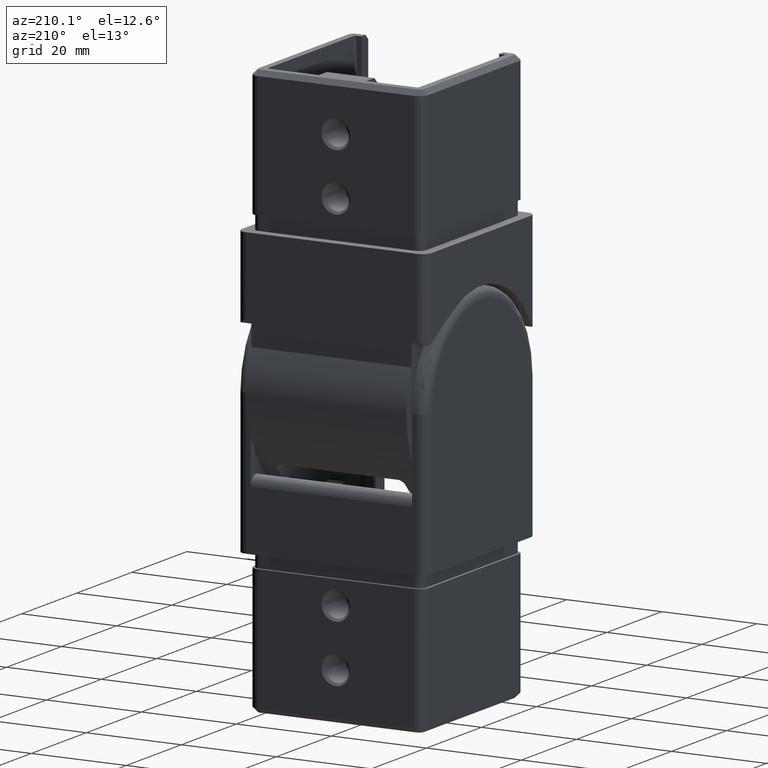
[diagram: clean part render]
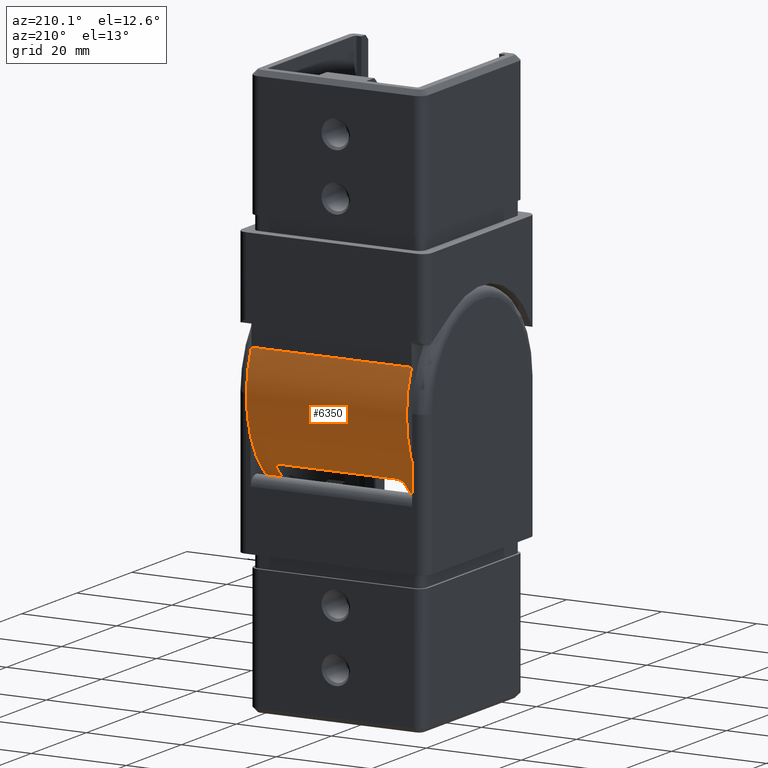
[diagram: same view with one face highlighted and labeled with its STEP entity id]
A machine part, auxiliary view. The second image highlights one B-rep face of the part: STEP entity #6350.
In plain terms, the highlighted cylindrical surface (partial cylindrical patch) has radius 21.8 mm, axis along (-1, -0, -0).
Its self-contained STEP definition (entity closure, byte-faithful):
#175 = CARTESIAN_POINT ( 'NONE',  ( 16.84999999999999100, 20.00000000000000000, -21.32590062311942700 ) ) ;
#482 = AXIS2_PLACEMENT_3D ( 'NONE', #2700, #18573, #18740 ) ;
#526 = AXIS2_PLACEMENT_3D ( 'NONE', #9290, #3258, #18979 ) ;
#1277 = CARTESIAN_POINT ( 'NONE',  ( 13.27914757057999800, 16.91737615731332100, -43.74977656108254800 ) ) ;
#1317 = VERTEX_POINT ( 'NONE', #5961 ) ;
#1575 = CARTESIAN_POINT ( 'NONE',  ( -12.74729979102685600, 17.24996179652751100, -43.33079573922437800 ) ) ;
#1657 = CARTESIAN_POINT ( 'NONE',  ( -12.50000000000000000, 17.35699977293736800, -43.18994157994084300 ) ) ;
#1687 = ORIENTED_EDGE ( 'NONE', *, *, #16783, .F. ) ;
#1692 = EDGE_LOOP ( 'NONE', ( #6047, #25515, #13965, #14850, #14659, #15647, #8945, #1687, #13159, #21876 ) ) ;
#2700 = CARTESIAN_POINT ( 'NONE',  ( 13.50000000000000000, 0.0000000000000000000, -30.00000000000000000 ) ) ;
#2830 = DIRECTION ( 'NONE',  ( 0.0000000000000000000, 0.0000000000000000000, 1.000000000000000000 ) ) ;
#2855 = CARTESIAN_POINT ( 'NONE',  ( -13.50000000000000000, 12.50396631245270700, -47.85751456550009000 ) ) ;
#3258 = DIRECTION ( 'NONE',  ( -1.000000000000000000, -0.0000000000000000000, -0.0000000000000000000 ) ) ;
#3619 = CARTESIAN_POINT ( 'NONE',  ( -13.50000000000000000, 16.45444103097600700, -44.30004791453976800 ) ) ;
#3778 = CARTESIAN_POINT ( 'NONE',  ( -13.49999999999999800, 16.55504114626073100, -44.18429175242377500 ) ) ;
#3840 = CIRCLE ( 'NONE', #7291, 21.80000000000000100 ) ;
#4282 = EDGE_CURVE ( 'NONE', #18731, #17174, #13422, .T. ) ;
#4412 = DIRECTION ( 'NONE',  ( -1.000000000000000000, -0.0000000000000000000, -0.0000000000000000000 ) ) ;
#4423 = VERTEX_POINT ( 'NONE', #2855 ) ;
#4576 = DIRECTION ( 'NONE',  ( 1.000000000000000000, 0.0000000000000000000, 0.0000000000000000000 ) ) ;
#4653 = EDGE_CURVE ( 'NONE', #1317, #25505, #15070, .T. ) ;
#4926 = VERTEX_POINT ( 'NONE', #16631 ) ;
#5200 = CARTESIAN_POINT ( 'NONE',  ( 13.35898252008900900, 16.83406079571441800, -43.85187710440357700 ) ) ;
#5370 = EDGE_CURVE ( 'NONE', #4423, #25505, #19715, .T. ) ;
#5503 = CARTESIAN_POINT ( 'NONE',  ( -13.46947334761024200, 16.65246259889465100, -44.06966918914859800 ) ) ;
#5961 = CARTESIAN_POINT ( 'NONE',  ( -16.84999999999999100, 20.00000000000000000, -21.32590062311942700 ) ) ;
#6047 = ORIENTED_EDGE ( 'NONE', *, *, #19632, .T. ) ;
#6350 = ADVANCED_FACE ( 'NONE', ( #9766 ), #13133, .T. ) ;
#6503 = DIRECTION ( 'NONE',  ( -1.000000000000000000, -0.0000000000000000000, -0.0000000000000000000 ) ) ;
#6652 = CARTESIAN_POINT ( 'NONE',  ( -12.50000000000000000, 17.35699977293736800, -43.18994157994084300 ) ) ;
#7025 = CARTESIAN_POINT ( 'NONE',  ( 13.46947242003048800, 16.65246549807100600, -44.06966577516554700 ) ) ;
#7091 = VECTOR ( 'NONE', #25223, 1000.000000000000000 ) ;
#7157 = CARTESIAN_POINT ( 'NONE',  ( 13.50000000000000000, 16.45444103097600700, -44.30004791453976800 ) ) ;
#7291 = AXIS2_PLACEMENT_3D ( 'NONE', #15293, #15378, #17317 ) ;
#7469 = CIRCLE ( 'NONE', #482, 21.80000000000000100 ) ;
#7620 = VECTOR ( 'NONE', #6503, 1000.000000000000000 ) ;
#8926 = CARTESIAN_POINT ( 'NONE',  ( 13.50000000000000000, 16.45444103097600700, -44.30004791453976800 ) ) ;
#8945 = ORIENTED_EDGE ( 'NONE', *, *, #4653, .F. ) ;
#9060 = DIRECTION ( 'NONE',  ( 0.0000000000000000000, 0.0000000000000000000, -1.000000000000000000 ) ) ;
#9290 = CARTESIAN_POINT ( 'NONE',  ( 20.00000000000000000, 0.0000000000000000000, -30.00000000000000000 ) ) ;
#9416 = CIRCLE ( 'NONE', #9923, 21.80000000000000100 ) ;
#9643 = CARTESIAN_POINT ( 'NONE',  ( -13.35898642836489500, 16.83405574687660100, -43.85188322253379300 ) ) ;
#9696 = VECTOR ( 'NONE', #4412, 1000.000000000000000 ) ;
#9766 = FACE_OUTER_BOUND ( 'NONE', #1692, .T. ) ;
#9923 = AXIS2_PLACEMENT_3D ( 'NONE', #16398, #4576, #9060 ) ;
#11193 = EDGE_CURVE ( 'NONE', #17027, #18731, #12463, .T. ) ;
#12276 = VERTEX_POINT ( 'NONE', #175 ) ;
#12463 = LINE ( 'NONE', #23931, #9696 ) ;
#12731 = CARTESIAN_POINT ( 'NONE',  ( -16.84999999999999100, 0.0000000000000000000, -30.00000000000000000 ) ) ;
#13133 = CYLINDRICAL_SURFACE ( 'NONE', #526, 21.80000000000000100 ) ;
#13159 = ORIENTED_EDGE ( 'NONE', *, *, #24411, .T. ) ;
#13422 = B_SPLINE_CURVE_WITH_KNOTS ( 'NONE', 3,
 ( #1657, #1575, #17355, #23366, #9643, #5503, #3778, #3619 ),
 .UNSPECIFIED., .F., .F.,
 ( 4, 2, 2, 4 ),
 ( -6.324555327399279300E-006, 0.0009058639564416436800, 0.001361958212326165000, 0.001818052468210686500 ),
 .UNSPECIFIED. ) ;
#13905 = EDGE_CURVE ( 'NONE', #17504, #17027, #19892, .T. ) ;
#13965 = ORIENTED_EDGE ( 'NONE', *, *, #11193, .T. ) ;
#14659 = ORIENTED_EDGE ( 'NONE', *, *, #24719, .F. ) ;
#14828 = CARTESIAN_POINT ( 'NONE',  ( 12.50000000000000000, 17.35699977293736800, -43.18994157994084300 ) ) ;
#14850 = ORIENTED_EDGE ( 'NONE', *, *, #4282, .T. ) ;
#15020 = CARTESIAN_POINT ( 'NONE',  ( 12.74626699440409700, 17.25040881858153700, -43.33020749085016400 ) ) ;
#15030 = DIRECTION ( 'NONE',  ( -1.000000000000000000, -0.0000000000000000000, -0.0000000000000000000 ) ) ;
#15070 = CIRCLE ( 'NONE', #22572, 21.80000000000000100 ) ;
#15293 = CARTESIAN_POINT ( 'NONE',  ( 16.84999999999999100, 0.0000000000000000000, -30.00000000000000000 ) ) ;
#15378 = DIRECTION ( 'NONE',  ( -1.000000000000000000, -0.0000000000000000000, -0.0000000000000000000 ) ) ;
#15384 = CARTESIAN_POINT ( 'NONE',  ( 20.00000000000000000, 20.00000000000000000, -21.32590062311943400 ) ) ;
#15458 = VERTEX_POINT ( 'NONE', #17528 ) ;
#15647 = ORIENTED_EDGE ( 'NONE', *, *, #5370, .T. ) ;
#15842 = VECTOR ( 'NONE', #15030, 1000.000000000000000 ) ;
#16398 = CARTESIAN_POINT ( 'NONE',  ( -13.50000000000000000, 0.0000000000000000000, -30.00000000000000000 ) ) ;
#16631 = CARTESIAN_POINT ( 'NONE',  ( 13.50000000000000000, 12.50396631245270700, -47.85751456550009000 ) ) ;
#16783 = EDGE_CURVE ( 'NONE', #12276, #1317, #21618, .T. ) ;
#17027 = VERTEX_POINT ( 'NONE', #14828 ) ;
#17174 = VERTEX_POINT ( 'NONE', #21148 ) ;
#17317 = DIRECTION ( 'NONE',  ( 0.0000000000000000000, 0.0000000000000000000, 1.000000000000000000 ) ) ;
#17355 = CARTESIAN_POINT ( 'NONE',  ( -12.99498458954943600, 17.13952694377825700, -43.47339977071223400 ) ) ;
#17504 = VERTEX_POINT ( 'NONE', #7157 ) ;
#17528 = CARTESIAN_POINT ( 'NONE',  ( 16.84999999999999100, 12.50396631245270900, -47.85751456550008200 ) ) ;
#17989 = EDGE_CURVE ( 'NONE', #15458, #4926, #25400, .T. ) ;
#18210 = CARTESIAN_POINT ( 'NONE',  ( -16.84999999999999100, 12.50396631245270900, -47.85751456550008200 ) ) ;
#18342 = CARTESIAN_POINT ( 'NONE',  ( 20.00000000000000000, 12.50396631245270700, -47.85751456550009000 ) ) ;
#18573 = DIRECTION ( 'NONE',  ( 1.000000000000000000, 0.0000000000000000000, 0.0000000000000000000 ) ) ;
#18688 = CARTESIAN_POINT ( 'NONE',  ( 13.49999999999999800, 16.55504261395972400, -44.18429006360657500 ) ) ;
#18731 = VERTEX_POINT ( 'NONE', #6652 ) ;
#18740 = DIRECTION ( 'NONE',  ( 0.0000000000000000000, 0.0000000000000000000, -1.000000000000000000 ) ) ;
#18979 = DIRECTION ( 'NONE',  ( 0.0000000000000000000, 0.0000000000000000000, 1.000000000000000000 ) ) ;
#19632 = EDGE_CURVE ( 'NONE', #4926, #17504, #7469, .T. ) ;
#19715 = LINE ( 'NONE', #18342, #7620 ) ;
#19892 = B_SPLINE_CURVE_WITH_KNOTS ( 'NONE', 3,
 ( #8926, #18688, #7025, #5200, #1277, #24701, #15020, #22988 ),
 .UNSPECIFIED., .F., .F.,
 ( 4, 2, 2, 4 ),
 ( 0.0000000000000000000, 0.0004541894721999806900, 0.0009083789443999613900, 0.001816757888799901700 ),
 .UNSPECIFIED. ) ;
#21095 = CARTESIAN_POINT ( 'NONE',  ( 20.00000000000000000, 12.50396631245270700, -47.85751456550009000 ) ) ;
#21148 = CARTESIAN_POINT ( 'NONE',  ( -13.50000000000000000, 16.45444103097600700, -44.30004791453976800 ) ) ;
#21618 = LINE ( 'NONE', #15384, #7091 ) ;
#21876 = ORIENTED_EDGE ( 'NONE', *, *, #17989, .T. ) ;
#22571 = DIRECTION ( 'NONE',  ( -1.000000000000000000, 0.0000000000000000000, 0.0000000000000000000 ) ) ;
#22572 = AXIS2_PLACEMENT_3D ( 'NONE', #12731, #22571, #2830 ) ;
#22988 = CARTESIAN_POINT ( 'NONE',  ( 12.50000000000000000, 17.35699977293736800, -43.18994157994084300 ) ) ;
#23366 = CARTESIAN_POINT ( 'NONE',  ( -13.27915365776711100, 16.91737020970952400, -43.74978387092375700 ) ) ;
#23931 = CARTESIAN_POINT ( 'NONE',  ( 20.00000000000000000, 17.35699977293736800, -43.18994157994084300 ) ) ;
#24411 = EDGE_CURVE ( 'NONE', #12276, #15458, #3840, .T. ) ;
#24701 = CARTESIAN_POINT ( 'NONE',  ( 12.99497188861616200, 17.13953449534843200, -43.47339019674237200 ) ) ;
#24719 = EDGE_CURVE ( 'NONE', #4423, #17174, #9416, .T. ) ;
#25223 = DIRECTION ( 'NONE',  ( -1.000000000000000000, -0.0000000000000000000, -0.0000000000000000000 ) ) ;
#25400 = LINE ( 'NONE', #21095, #15842 ) ;
#25505 = VERTEX_POINT ( 'NONE', #18210 ) ;
#25515 = ORIENTED_EDGE ( 'NONE', *, *, #13905, .T. ) ;